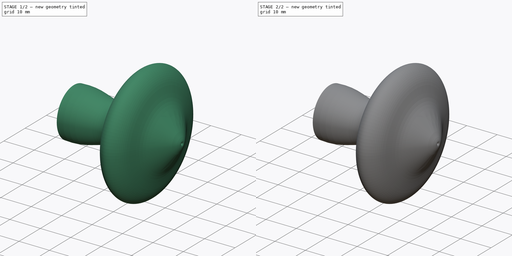
[diagram: build sequence overview — one tinted view per stage of 2, left to right]
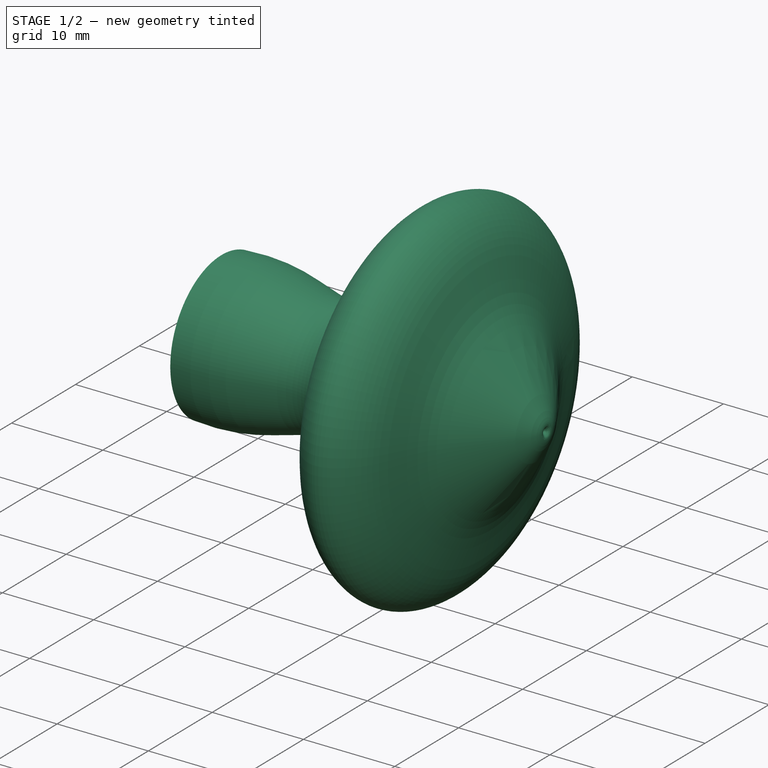
[diagram: stage 1 of 2 — iso view after this stage's code; geometry added in this stage tinted green]
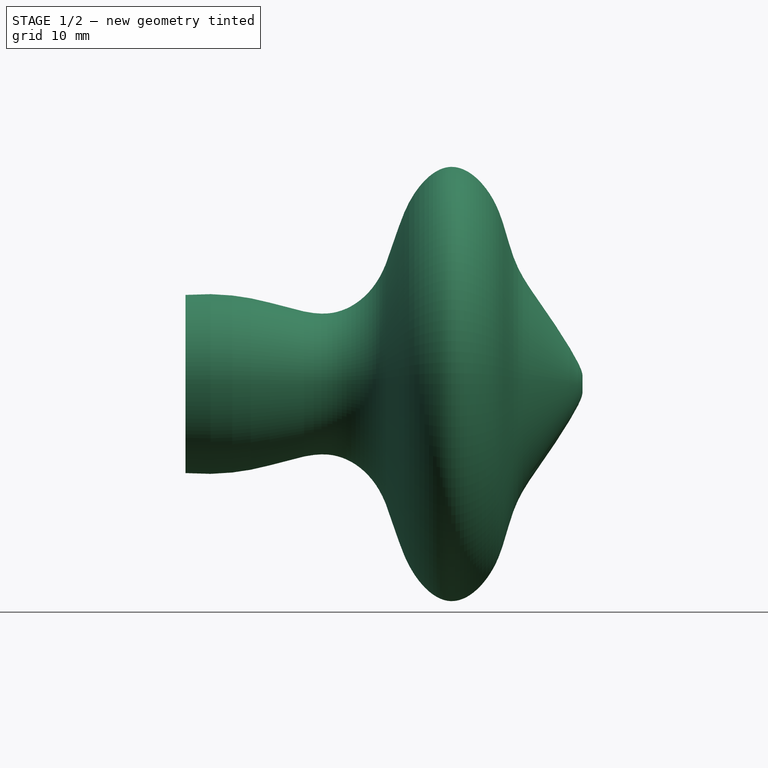
[diagram: stage 1 of 2 — front view after this stage's code; geometry added in this stage tinted green]
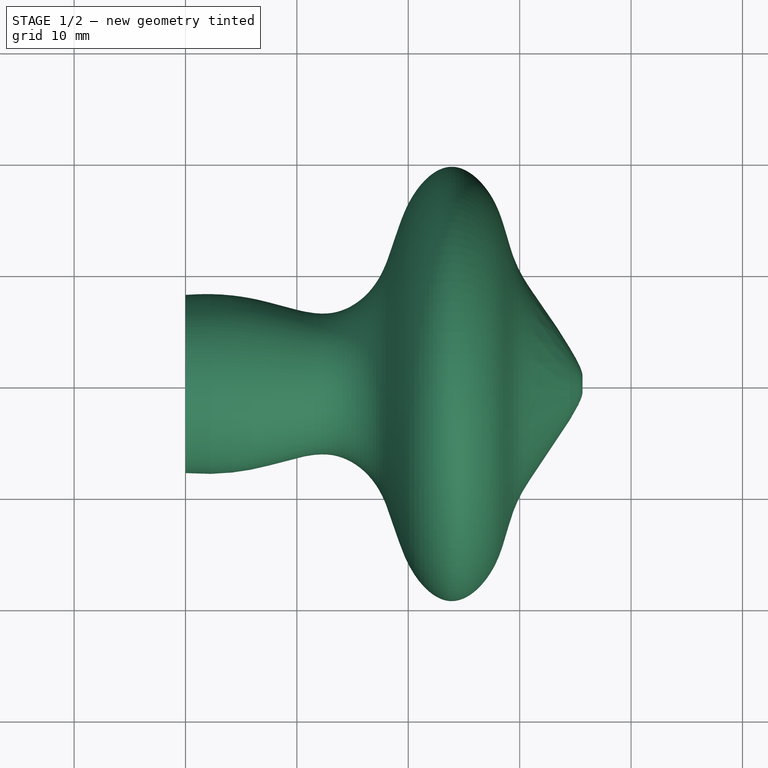
[diagram: stage 1 of 2 — top view after this stage's code; geometry added in this stage tinted green]
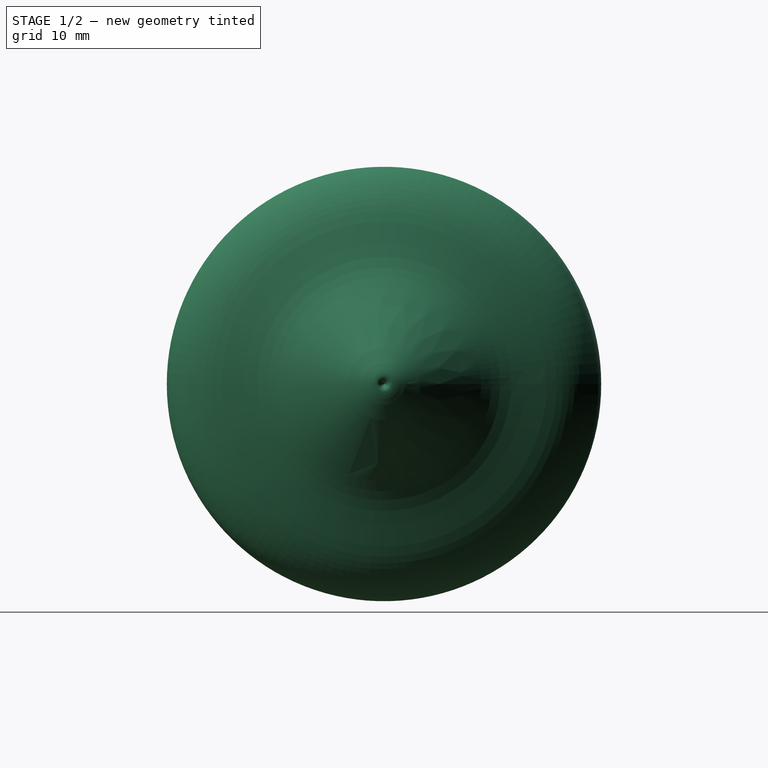
[diagram: stage 1 of 2 — right view after this stage's code; geometry added in this stage tinted green]
FCSTD DOCUMENT  (FreeCAD 1.0R39319 (Git))
Label: 19_knob
License: All rights reserved
LicenseURL: http://en.wikipedia.org/wiki/All_rights_reserved
objects: TechDraw::DrawProjGroupItem×3, Sketcher::SketchObject×2, PartDesign::Revolution×1, TechDraw::DrawSVGTemplate×1, TechDraw::DrawProjGroup×1, TechDraw::DrawPage×1, PartDesign::Pocket×1, PartDesign::Body×1
note: 11 computed .brp shape members not serialized (recipe doc carries the construction recipe); baked Part::Feature solids carry a one-line shape summary decoded from their .brp

FEATURE [Sketcher::SketchObject] Sketch
  ArcFitTolerance = 1e-06
  AttachmentSupport = -> [XY_Plane]
  FullyConstrained = false
  MakeInternals = false
  MapMode = 5
  sketch-geometry (35):
    g0: LineSegment [constr] StartX=0 StartY=0 StartZ=0 EndX=35 EndY=0 EndZ=0
    g1: LineSegment StartX=0 StartY=0 StartZ=0 EndX=0 EndY=8 EndZ=0
    g2: LineSegment [constr] StartX=4 StartY=0 StartZ=0 EndX=4 EndY=8.3 EndZ=0
    g3: LineSegment [constr] StartX=9 StartY=0 StartZ=0 EndX=9 EndY=6.9 EndZ=0
    g4: LineSegment [constr] StartX=13.5 StartY=0 StartZ=0 EndX=13.5 EndY=5.7 EndZ=0
    g5: LineSegment [constr] StartX=18 StartY=0 StartZ=0 EndX=18 EndY=9 EndZ=0
    g6: LineSegment [constr] StartX=19.4 StartY=0 StartZ=0 EndX=19.4 EndY=16.5 EndZ=0
    g7: LineSegment [constr] StartX=23.9 StartY=0 StartZ=0 EndX=23.9 EndY=21 EndZ=0
    g8: LineSegment [constr] StartX=28.4 StartY=0 StartZ=0 EndX=28.4 EndY=16.5 EndZ=0
    g9: GeomPoint X=23.9 Y=22 Z=0
    g10-g19: Circle [constr] x10 (B-spline internal-alignment scaffolding for g20; pole/knot coordinates omitted)
    g20: BSplineCurve PolesCount=14 KnotsCount=12 Degree=3 IsPeriodic=0
    g21-g28: GeomPoint [constr] x8 (B-spline internal-alignment scaffolding for g20; pole/knot coordinates omitted)
    g29: LineSegment StartX=0 StartY=0 StartZ=0 EndX=35 EndY=0 EndZ=0
    g30-g33: Circle [constr] x4 (B-spline internal-alignment scaffolding for g20; pole/knot coordinates omitted)
    g34: LineSegment [constr] StartX=35.63 StartY=-0.481088 StartZ=0 EndX=35.63 EndY=1.13494 EndZ=0
  constraints (63):
    c: Coincident(g0,g-1)
    c: PointOnObject(g0,g-1)
    c: DistanceX(g0,g0) = 35
    c: Coincident(g1,g0)
    c: PointOnObject(g1,g-2)
    c: DistanceY(g1,g1) = 8
    c: PointOnObject(g2,g0)
    c: Vertical(g2)
    c: PointOnObject(g3,g0)
    c: Vertical(g3)
    c: Distance(g2,g1) = 4
    c: Distance(g3,g2) = 5
    c: PointOnObject(g4,g0)
    c: Vertical(g4)
    c: PointOnObject(g5,g0)
    c: Vertical(g5)
    c: PointOnObject(g6,g0)
    c: Vertical(g6)
    c: Distance(g4,g3) = 4.5
    c: Distance(g5,g4) = 4.5
    c: Distance(g5,g6) = 1.4
    c: PointOnObject(g7,g0)
    c: Vertical(g7)
    c: PointOnObject(g8,g0)
    c: Vertical(g8)
    c: Distance(g7,g6) = 4.5
    c: Distance(g7,g8) = 4.5
    c: DistanceY(g2,g2) = 8.3
    c: DistanceY(g3,g3) = 6.9
    c: DistanceY(g4,g4) = 5.7
    c: DistanceY(g5,g5) = 9
    c: DistanceY(g6,g6) = 16.5
    c: DistanceY(g7,g7) = 21
    c: DistanceY(g8,g8) = 16.5
    c: PointOnObject(g9,g7)
    c: DistanceY(g7,g9) = 22
    c: Weight(g10) = 1
    c: Equal(g10, g11-g19) x9
    c: InternalAlignment(g10-g19 -> g20) x10
    c: InternalAlignment(g21-g28 -> g20) x8
    c: Coincident(g10,g1)
    c: Coincident(g11,g2)
    c: Coincident(g12,g3)
    c: Coincident(g13,g4)
    c: Coincident(g14,g5)
    c: Coincident(g15,g6)
    c: Coincident(g16,g7)
    c: Coincident(g17,g8)
    c: Coincident(g19,g0)
    c: Coincident(g29,g0)
    c: Coincident(g29,g20)
    c: InternalAlignment(g30,g20)
    c: Equal(g30,g10)
    c: InternalAlignment(g31,g20)
    c: Equal(g31,g10)
    c: InternalAlignment(g32,g20)
    c: Equal(g32,g10)
    c: InternalAlignment(g33,g20)
    c: Equal(g33,g10)
    c: Distance(g18,g8) = 0.8
    c: Vertical(g34)
    c: Distance(g34,g1) = 35.63
    c: DistanceY(g7,g26) = 19.5
FEATURE [PartDesign::Revolution] Revolution
  Angle = 360
  Angle2 = 60
  Axis = (1,0,0)
  Base = (0,0,0)
  Profile = -> Sketch
  ReferenceAxis = -> Sketch [Edge3]
  Refine = true
  Reversed = true
  Suppressed = false
  Type = 0
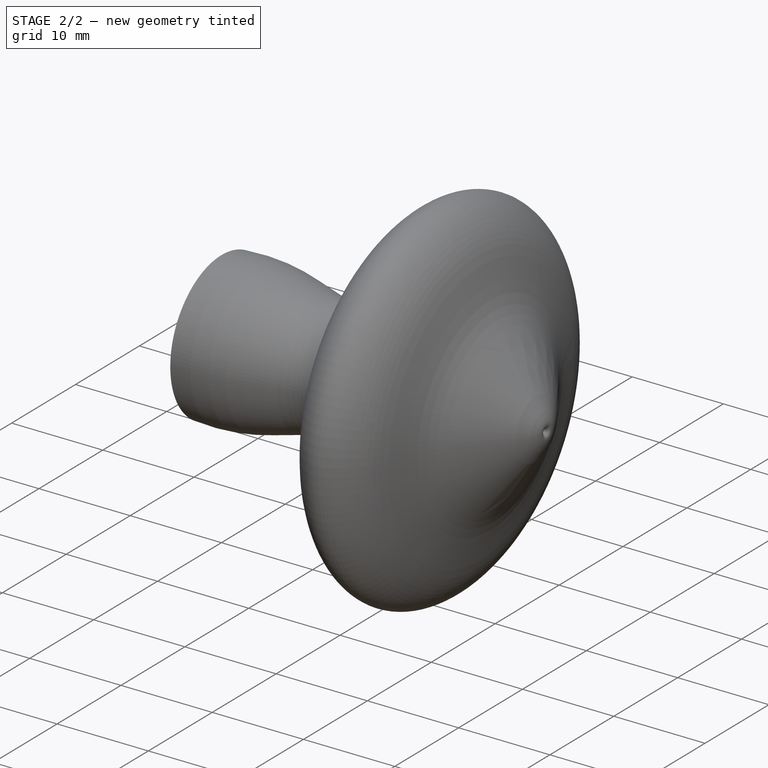
[diagram: stage 2 of 2 — iso view after this stage's code; geometry added in this stage tinted green]
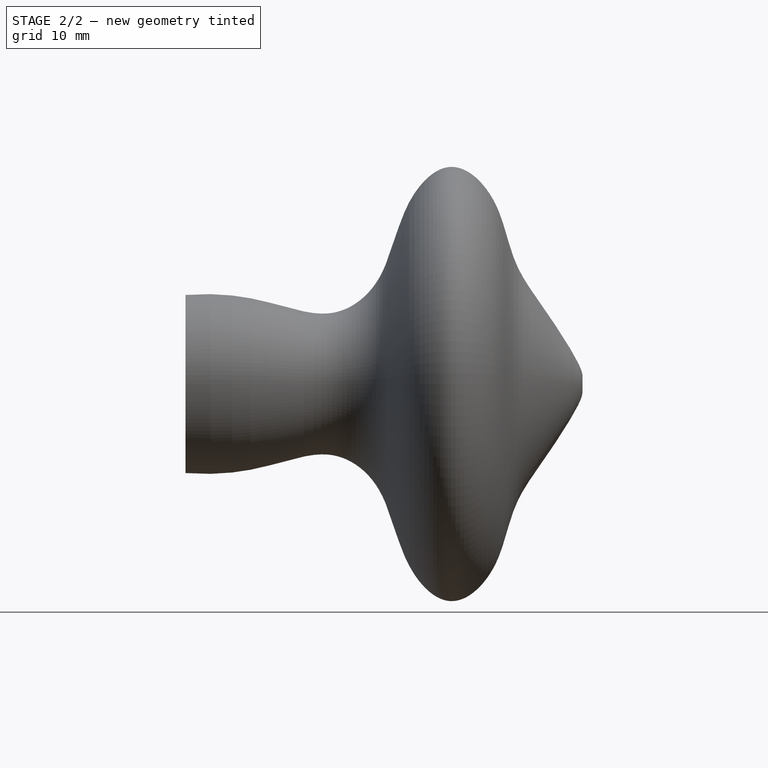
[diagram: stage 2 of 2 — front view after this stage's code; geometry added in this stage tinted green]
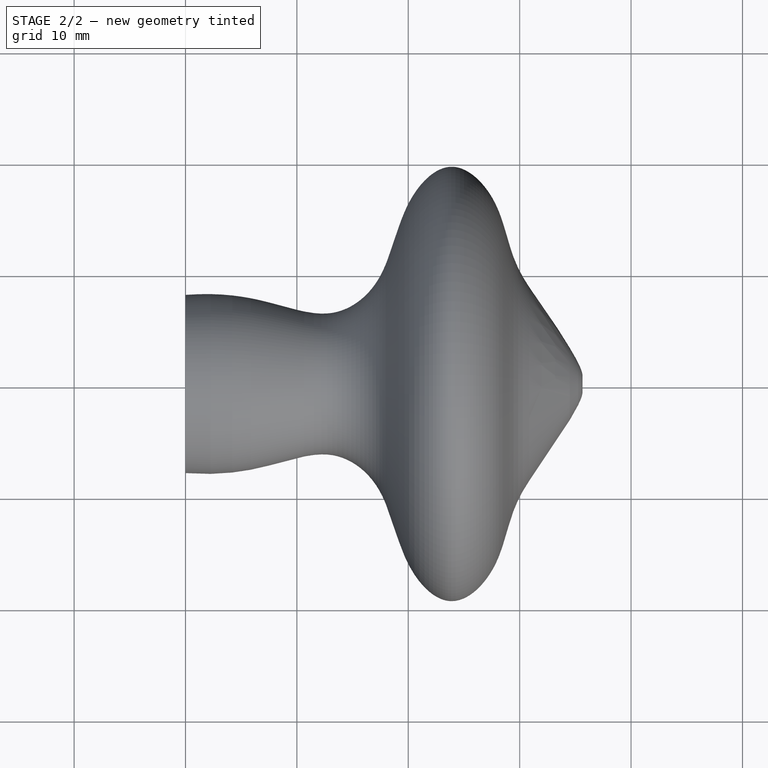
[diagram: stage 2 of 2 — top view after this stage's code; geometry added in this stage tinted green]
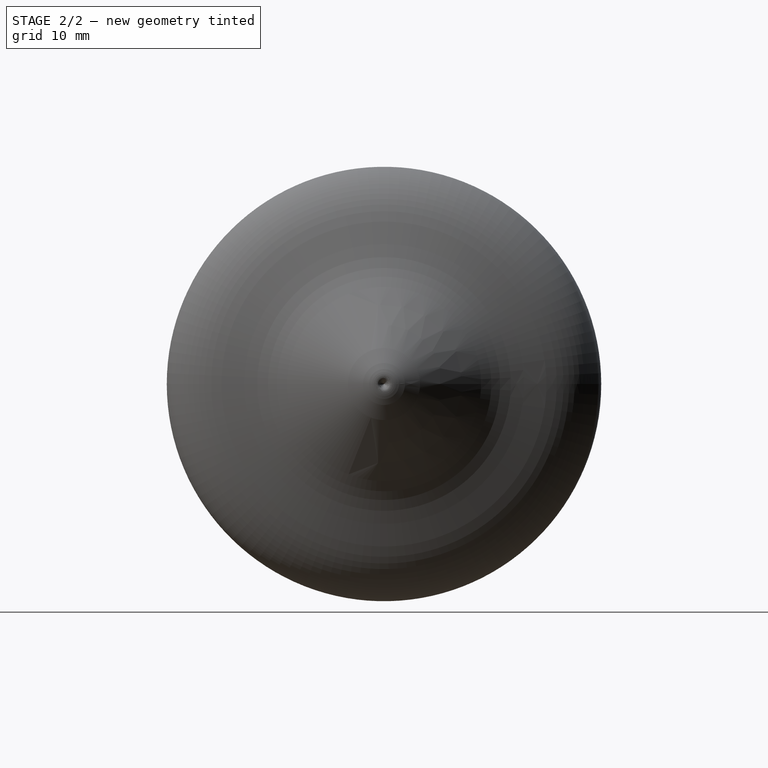
[diagram: stage 2 of 2 — right view after this stage's code; geometry added in this stage tinted green]
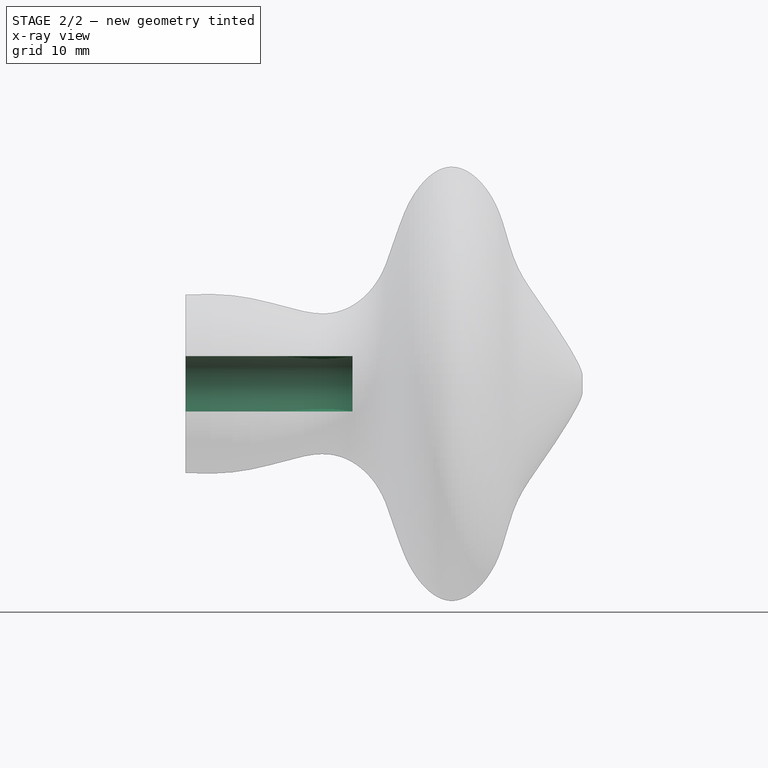
[diagram: stage 2 of 2 — x-ray composite at the front view; earlier geometry ghosted, this stage's added geometry solid]
FEATURE [TechDraw::DrawSVGTemplate] Template
  Height = 210
  Orientation = 1
  Template = C:/Program Files/FreeCAD 1.0/data/Mod/TechDraw/Templates/Default_Template_A4_Landscape.svg
  Width = 297
FEATURE [TechDraw::DrawProjGroupItem] View  label="Front"
  CoarseView = false
  Direction = (0,-1,0)
  Focus = 100
  HardHidden = false
  IsoCount = 0
  IsoHidden = false
  IsoVisible = false
  LockPosition = true
  Perspective = false
  Rotation = 0
  RotationVector = (1,0,0)
  ScaleType = 2
  ScrubCount = 1
  SeamHidden = false
  SeamVisible = true
  SmoothHidden = false
  SmoothVisible = true
  Source = -> [Revolution]
  Type = 0
  X = 0
  XDirection = (1,0,0)
  Y = 0
FEATURE [TechDraw::DrawProjGroupItem] ProjItem  label="Left"
  CoarseView = false
  Direction = (-1,-1e-16,0)
  Focus = 100
  HardHidden = false
  IsoCount = 0
  IsoHidden = false
  IsoVisible = false
  LockPosition = false
  Perspective = false
  Rotation = 0
  RotationVector = (1,0,0)
  ScaleType = 0
  ScrubCount = 1
  SeamHidden = false
  SeamVisible = true
  SmoothHidden = false
  SmoothVisible = true
  Source = -> [Revolution]
  Type = 1
  X = 52.3203
  XDirection = (1e-16,-1,0)
  Y = 0
FEATURE [TechDraw::DrawProjGroupItem] ProjItem001  label="Right"
  CoarseView = false
  Direction = (1,-1e-16,0)
  Focus = 100
  HardHidden = false
  IsoCount = 0
  IsoHidden = false
  IsoVisible = false
  LockPosition = false
  Perspective = false
  Rotation = 0
  RotationVector = (1,0,0)
  ScaleType = 0
  ScrubCount = 1
  SeamHidden = false
  SeamVisible = true
  SmoothHidden = false
  SmoothVisible = true
  Source = -> [Revolution]
  Type = 2
  X = -52.3187
  XDirection = (1e-16,1,0)
  Y = 0
FEATURE [TechDraw::DrawProjGroup] ProjGroup
  Anchor = -> View
  AutoDistribute = true
  LockPosition = false
  ProjectionType = 0
  Rotation = 0
  ScaleType = 0
  Source = -> [Revolution]
  Views = -> [View,ProjItem,ProjItem001]
  X = 148.5
  Y = 105
  spacingX = 15
  spacingY = 15
FEATURE [TechDraw::DrawPage] Page
  KeepUpdated = true
  NextBalloonIndex = 1
  ProjectionType = 0
  Template = -> Template
  Views = -> [ProjGroup]
FEATURE [Sketcher::SketchObject] Sketch001
  ArcFitTolerance = 1e-06
  AttachmentSupport = -> [YZ_Plane]
  FullyConstrained = true
  MakeInternals = false
  MapMode = 5
  Placement = pos=(0,0,0) rot=(0.57735,0.57735,0.57735;2.0944rad)
  sketch-geometry (1):
    g0: Circle CenterX=0 CenterY=0 CenterZ=0 NormalX=0 NormalY=0 NormalZ=1 AngleXU=0 Radius=2.5
  constraints (2):
    c: Coincident(g0,g-1)
    c: Diameter(g0) = 5
FEATURE [PartDesign::Pocket] Pocket
  BaseFeature = -> Revolution
  Direction = (-1,0,0)
  Length = 15
  Length2 = 5
  Profile = -> Sketch001
  ReferenceAxis = -> Sketch001 [N_Axis]
  Refine = true
  Reversed = true
  Suppressed = false
  Type = 0
FEATURE [PartDesign::Body] Body
  AllowCompound = false
  Group = -> [Sketch,Revolution,Sketch001,Pocket]
  Origin = -> Origin
  Tip = -> Pocket
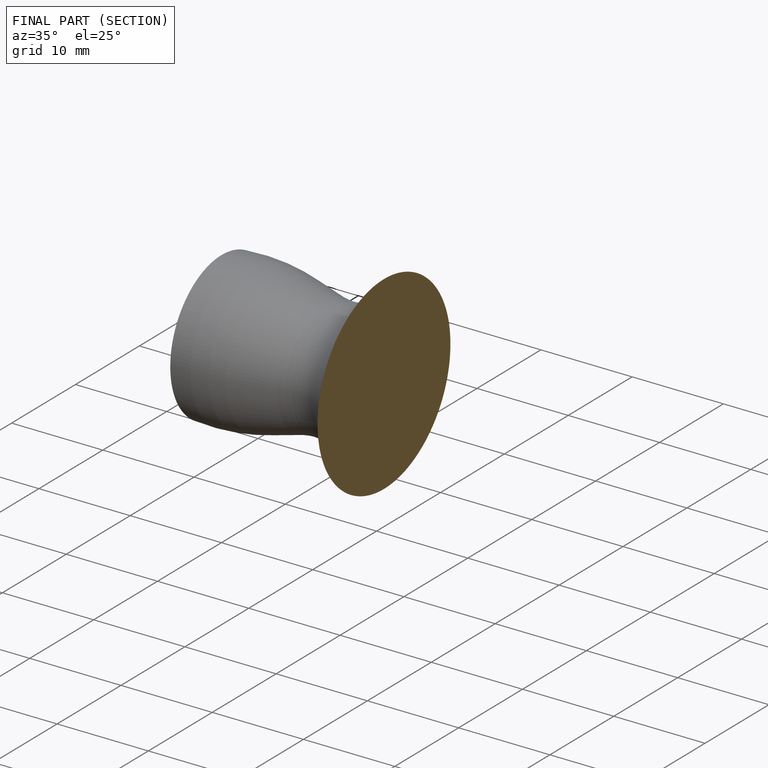
[diagram: finished part — half-section view (interior)]
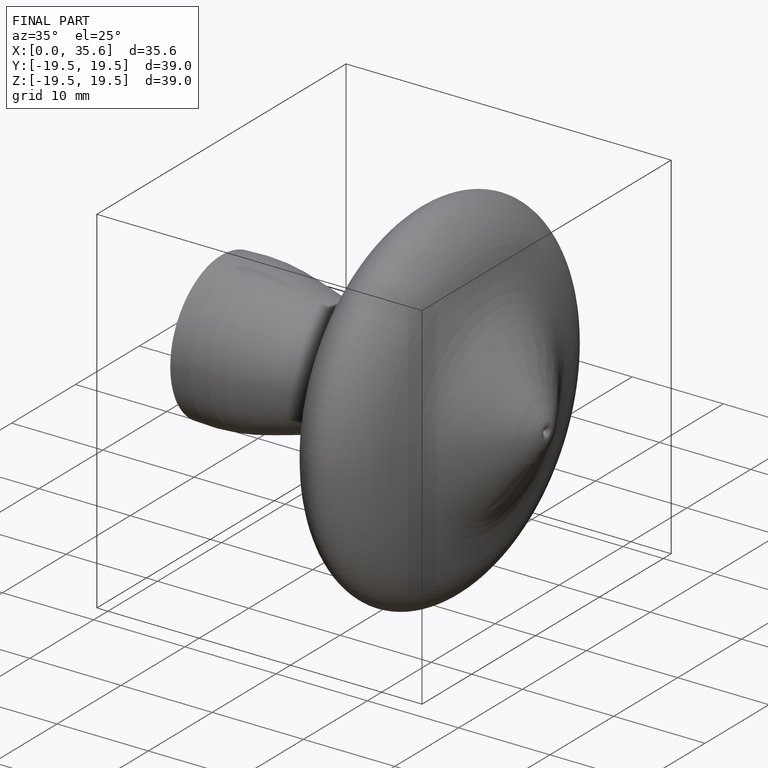
[diagram: finished part — iso view with bounding-box wireframe]
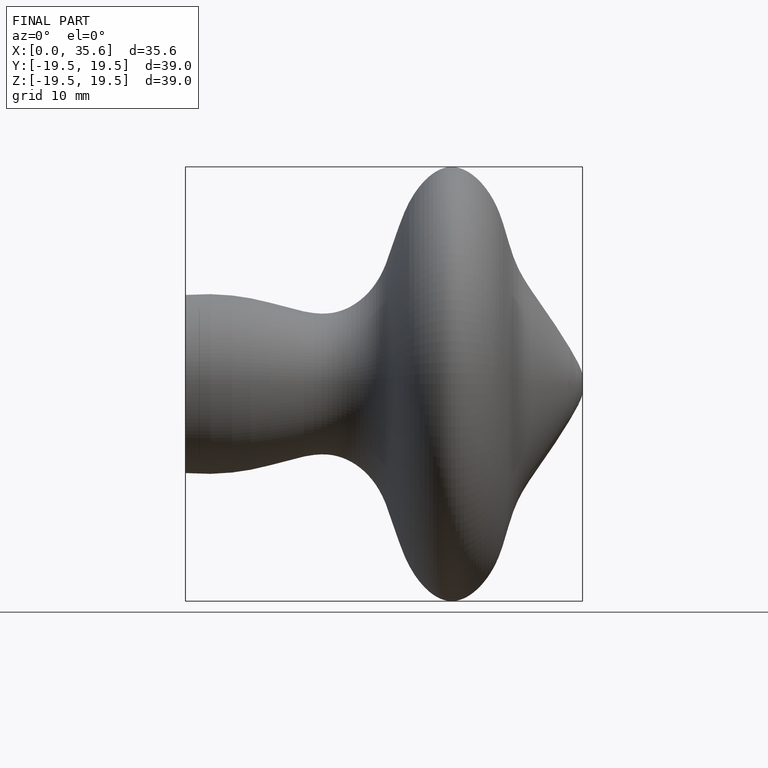
[diagram: finished part — front view with bounding-box wireframe]
